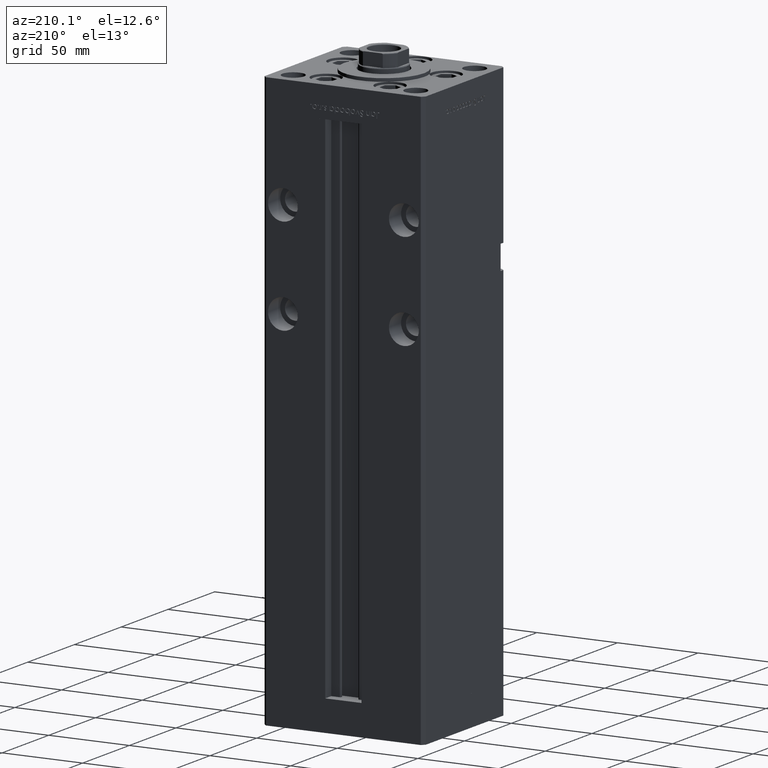
[diagram: clean part render]
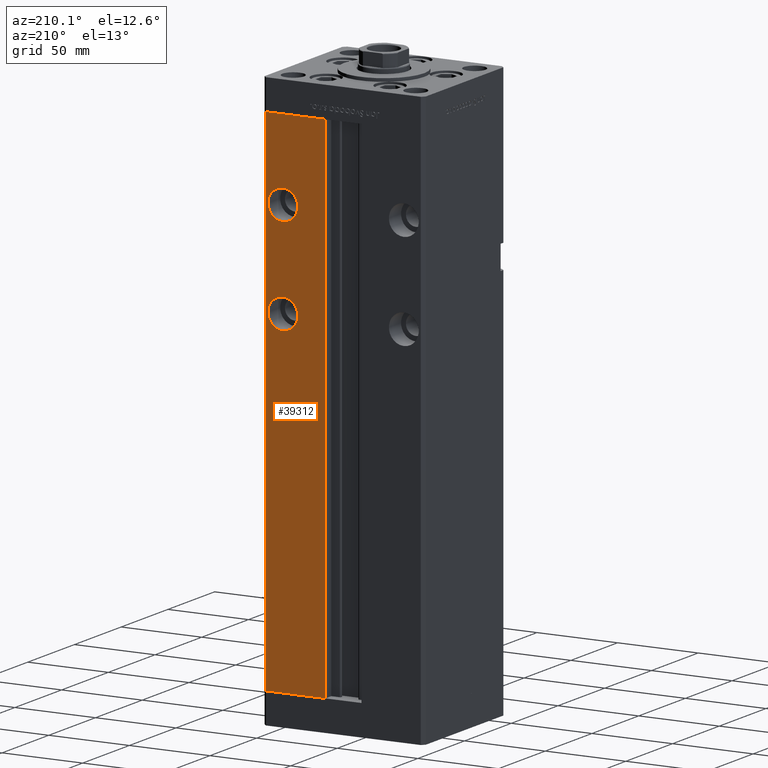
[diagram: same view with one face highlighted and labeled with its STEP entity id]
A machine part, auxiliary view. The second image highlights one B-rep face of the part: STEP entity #39312.
In plain terms, the highlighted planar face has unit normal (0, -1, 0).
Its self-contained STEP definition (entity closure, byte-faithful):
#651 = CARTESIAN_POINT ( 'NONE',  ( 37.50000000000000000, 43.50000000000000000, 208.5000000000000000 ) ) ;
#3821 = CARTESIAN_POINT ( 'NONE',  ( -11.24999999999999645, 43.50000000000000000, 318.5000000000000000 ) ) ;
#5114 = CARTESIAN_POINT ( 'NONE',  ( 37.50000000000000000, 43.50000000000000000, 217.7500000000000000 ) ) ;
#5975 = DIRECTION ( 'NONE',  ( 1.000000000000000000, 0.000000000000000000, 0.000000000000000000 ) ) ;
#6458 = CARTESIAN_POINT ( 'NONE',  ( 48.00000000000000711, 43.50000000000000000, 318.5000000000000000 ) ) ;
#6912 = EDGE_CURVE ( 'NONE', #30910, #13904, #22340, .T. ) ;
#7127 = AXIS2_PLACEMENT_3D ( 'NONE', #33713, #10076, #50887 ) ;
#8662 = VECTOR ( 'NONE', #20575, 1000.000000000000000 ) ;
#8743 = EDGE_LOOP ( 'NONE', ( #47318, #49485, #52104, #14481 ) ) ;
#10076 = DIRECTION ( 'NONE',  ( 0.000000000000000000, 1.000000000000000000, 0.000000000000000000 ) ) ;
#11433 = AXIS2_PLACEMENT_3D ( 'NONE', #651, #12245, #41003 ) ;
#12245 = DIRECTION ( 'NONE',  ( 0.000000000000000000, 1.000000000000000000, -0.000000000000000000 ) ) ;
#12438 = AXIS2_PLACEMENT_3D ( 'NONE', #48468, #44704, #52469 ) ;
#13786 = LINE ( 'NONE', #30153, #22679 ) ;
#13904 = VERTEX_POINT ( 'NONE', #28289 ) ;
#13927 = ORIENTED_EDGE ( 'NONE', *, *, #14978, .F. ) ;
#14481 = ORIENTED_EDGE ( 'NONE', *, *, #6912, .T. ) ;
#14978 = EDGE_CURVE ( 'NONE', #27393, #46715, #21881, .T. ) ;
#15272 = DIRECTION ( 'NONE',  ( 0.000000000000000000, 0.000000000000000000, -1.000000000000000000 ) ) ;
#15538 = CARTESIAN_POINT ( 'NONE',  ( 37.50000000000000000, 43.50000000000000000, 259.2500000000000000 ) ) ;
#15945 = DIRECTION ( 'NONE',  ( 0.000000000000000000, -0.000000000000000000, -1.000000000000000000 ) ) ;
#16893 = ORIENTED_EDGE ( 'NONE', *, *, #43010, .F. ) ;
#17468 = CARTESIAN_POINT ( 'NONE',  ( 37.50000000000000000, 43.50000000000000000, 277.7499999999999432 ) ) ;
#19907 = AXIS2_PLACEMENT_3D ( 'NONE', #3821, #36360, #15945 ) ;
#20575 = DIRECTION ( 'NONE',  ( -1.000000000000000000, 0.000000000000000000, 0.000000000000000000 ) ) ;
#20643 = VECTOR ( 'NONE', #42313, 1000.000000000000000 ) ;
#21881 = CIRCLE ( 'NONE', #12438, 9.249999999999980460 ) ;
#22340 = LINE ( 'NONE', #43288, #42579 ) ;
#22679 = VECTOR ( 'NONE', #5975, 1000.000000000000000 ) ;
#23692 = CIRCLE ( 'NONE', #35586, 9.250000000000008882 ) ;
#24267 = FACE_BOUND ( 'NONE', #26486, .T. ) ;
#26486 = EDGE_LOOP ( 'NONE', ( #16893, #32793 ) ) ;
#27393 = VERTEX_POINT ( 'NONE', #15538 ) ;
#28289 = CARTESIAN_POINT ( 'NONE',  ( 48.00000000000000711, 43.50000000000000000, 0.000000000000000000 ) ) ;
#30124 = VERTEX_POINT ( 'NONE', #30375 ) ;
#30153 = CARTESIAN_POINT ( 'NONE',  ( -11.24999999999999645, 43.50000000000000000, 318.5000000000000000 ) ) ;
#30375 = CARTESIAN_POINT ( 'NONE',  ( 11.24999999999999645, 43.50000000000000000, 0.000000000000000000 ) ) ;
#30910 = VERTEX_POINT ( 'NONE', #6458 ) ;
#31732 = VERTEX_POINT ( 'NONE', #34575 ) ;
#32793 = ORIENTED_EDGE ( 'NONE', *, *, #48287, .F. ) ;
#33713 = CARTESIAN_POINT ( 'NONE',  ( 37.50000000000000000, 43.50000000000000000, 268.4999999999999432 ) ) ;
#34575 = CARTESIAN_POINT ( 'NONE',  ( 37.50000000000000000, 43.50000000000000000, 199.2499999999999716 ) ) ;
#35299 = LINE ( 'NONE', #38811, #20643 ) ;
#35495 = EDGE_CURVE ( 'NONE', #30124, #38786, #35299, .T. ) ;
#35586 = AXIS2_PLACEMENT_3D ( 'NONE', #48042, #52561, #15272 ) ;
#36018 = ORIENTED_EDGE ( 'NONE', *, *, #43073, .F. ) ;
#36107 = PLANE ( 'NONE',  #19907 ) ;
#36360 = DIRECTION ( 'NONE',  ( 0.000000000000000000, -1.000000000000000000, 0.000000000000000000 ) ) ;
#36681 = CARTESIAN_POINT ( 'NONE',  ( -11.24999999999999645, 43.50000000000000000, 0.000000000000000000 ) ) ;
#37110 = EDGE_CURVE ( 'NONE', #13904, #30124, #45543, .T. ) ;
#38786 = VERTEX_POINT ( 'NONE', #51812 ) ;
#38811 = CARTESIAN_POINT ( 'NONE',  ( 11.24999999999999645, 43.50000000000000000, 0.000000000000000000 ) ) ;
#39312 = ADVANCED_FACE ( 'NONE', ( #24267, #52721, #40667 ), #36107, .F. ) ;
#39745 = CIRCLE ( 'NONE', #7127, 9.249999999999980460 ) ;
#40667 = FACE_OUTER_BOUND ( 'NONE', #8743, .T. ) ;
#41003 = DIRECTION ( 'NONE',  ( 0.000000000000000000, 0.000000000000000000, -1.000000000000000000 ) ) ;
#42055 = EDGE_LOOP ( 'NONE', ( #36018, #13927 ) ) ;
#42313 = DIRECTION ( 'NONE',  ( -0.000000000000000000, -0.000000000000000000, 1.000000000000000000 ) ) ;
#42579 = VECTOR ( 'NONE', #51588, 1000.000000000000000 ) ;
#43010 = EDGE_CURVE ( 'NONE', #50112, #31732, #44853, .T. ) ;
#43073 = EDGE_CURVE ( 'NONE', #46715, #27393, #39745, .T. ) ;
#43288 = CARTESIAN_POINT ( 'NONE',  ( 48.00000000000000711, 43.50000000000000000, 318.5000000000000000 ) ) ;
#44704 = DIRECTION ( 'NONE',  ( 0.000000000000000000, 1.000000000000000000, 0.000000000000000000 ) ) ;
#44853 = CIRCLE ( 'NONE', #11433, 9.250000000000008882 ) ;
#45543 = LINE ( 'NONE', #36681, #8662 ) ;
#46423 = EDGE_CURVE ( 'NONE', #38786, #30910, #13786, .T. ) ;
#46715 = VERTEX_POINT ( 'NONE', #17468 ) ;
#47318 = ORIENTED_EDGE ( 'NONE', *, *, #37110, .T. ) ;
#48042 = CARTESIAN_POINT ( 'NONE',  ( 37.50000000000000000, 43.50000000000000000, 208.5000000000000000 ) ) ;
#48287 = EDGE_CURVE ( 'NONE', #31732, #50112, #23692, .T. ) ;
#48468 = CARTESIAN_POINT ( 'NONE',  ( 37.50000000000000000, 43.50000000000000000, 268.4999999999999432 ) ) ;
#49485 = ORIENTED_EDGE ( 'NONE', *, *, #35495, .T. ) ;
#50112 = VERTEX_POINT ( 'NONE', #5114 ) ;
#50887 = DIRECTION ( 'NONE',  ( 0.000000000000000000, 0.000000000000000000, 1.000000000000000000 ) ) ;
#51588 = DIRECTION ( 'NONE',  ( -0.000000000000000000, -0.000000000000000000, -1.000000000000000000 ) ) ;
#51812 = CARTESIAN_POINT ( 'NONE',  ( 11.24999999999998934, 43.50000000000000000, 318.5000000000000000 ) ) ;
#52104 = ORIENTED_EDGE ( 'NONE', *, *, #46423, .T. ) ;
#52469 = DIRECTION ( 'NONE',  ( 0.000000000000000000, 0.000000000000000000, 1.000000000000000000 ) ) ;
#52561 = DIRECTION ( 'NONE',  ( 0.000000000000000000, 1.000000000000000000, -0.000000000000000000 ) ) ;
#52721 = FACE_BOUND ( 'NONE', #42055, .T. ) ;